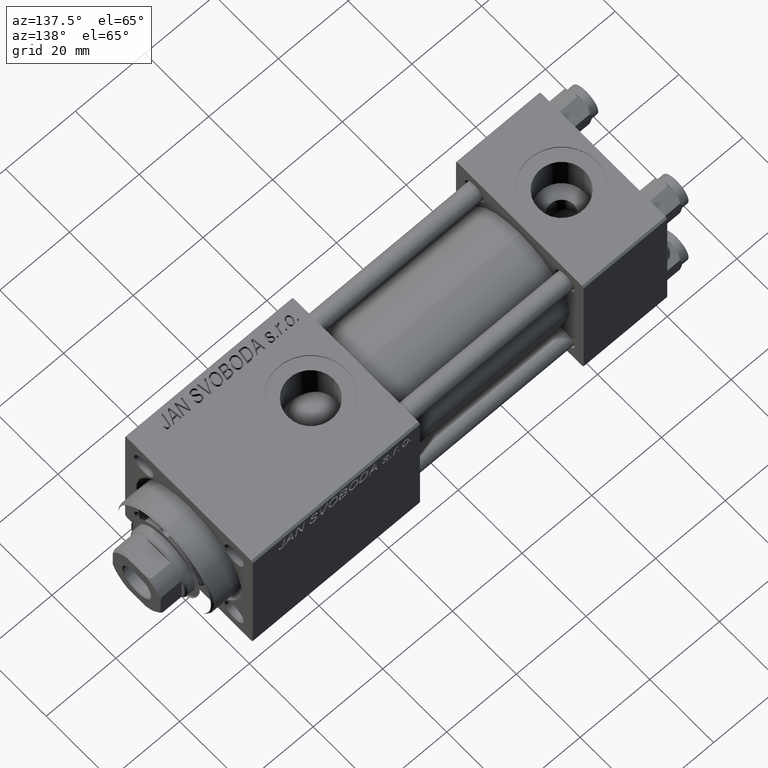
[diagram: clean part render]
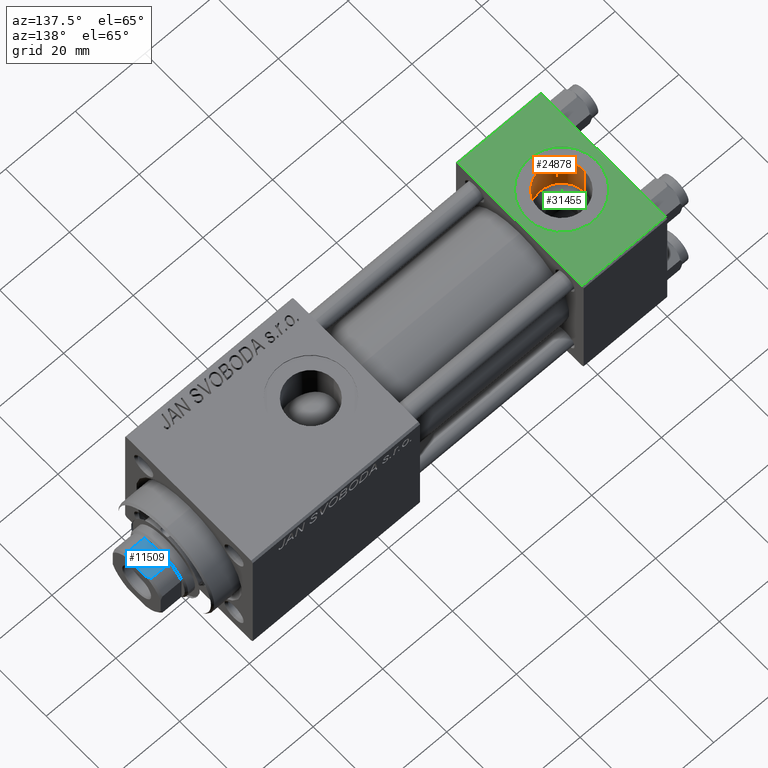
[diagram: same view with three faces highlighted in distinct colors, each labeled with its STEP entity id]
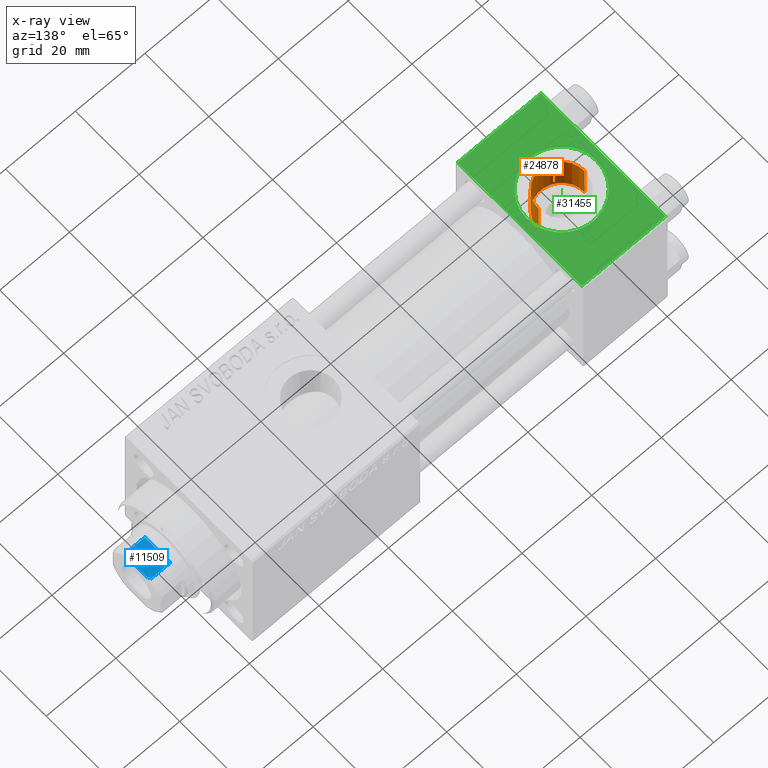
[diagram: x-ray of the same camera — body ghosted, the three highlighted faces saturated]
A machine part, auxiliary view with three faces highlighted in distinct colors.
The next image is the same camera in x-ray (body ghosted, the three faces saturated) — at least one of them is partly hidden behind the body in this view.
Their STEP definitions:

[orange] entity #24878 — the highlighted cylindrical surface (edge-blend (fillet) strip) has radius 6.58 mm, axis along (0, 0, 1).
#26 = ORIENTED_EDGE ( 'NONE', *, *, #13422, .F. ) ;
#3927 = EDGE_CURVE ( 'NONE', #46556, #18697, #48708, .T. ) ;
#3930 = CARTESIAN_POINT ( 'NONE',  ( 5.420000000000000817, 8.058175938389596335E-16, 9.165987261146492315 ) ) ;
#4290 = FACE_OUTER_BOUND ( 'NONE', #41430, .T. ) ;
#4659 = DIRECTION ( 'NONE',  ( 1.000000000000000000, 0.000000000000000000, 0.000000000000000000 ) ) ;
#7500 = EDGE_CURVE ( 'NONE', #18697, #41120, #42055, .T. ) ;
#10277 = ORIENTED_EDGE ( 'NONE', *, *, #3927, .T. ) ;
#13422 = EDGE_CURVE ( 'NONE', #46556, #34461, #15310, .T. ) ;
#15310 = LINE ( 'NONE', #47256, #46551 ) ;
#15676 = CARTESIAN_POINT ( 'NONE',  ( 12.00000000000000000, 1.540743955509788682E-30, 9.199999999999995737 ) ) ;
#15863 = AXIS2_PLACEMENT_3D ( 'NONE', #49038, #40868, #4659 ) ;
#18697 = VERTEX_POINT ( 'NONE', #3930 ) ;
#19011 = DIRECTION ( 'NONE',  ( -0.000000000000000000, -0.000000000000000000, 1.000000000000000000 ) ) ;
#19904 = DIRECTION ( 'NONE',  ( 1.000000000000000000, 0.000000000000000000, 0.000000000000000000 ) ) ;
#24878 = ADVANCED_FACE ( 'NONE', ( #4290 ), #36007, .F. ) ;
#25676 = DIRECTION ( 'NONE',  ( -0.000000000000000000, -0.000000000000000000, 1.000000000000000000 ) ) ;
#25925 = AXIS2_PLACEMENT_3D ( 'NONE', #45188, #29845, #36993 ) ;
#26920 = CARTESIAN_POINT ( 'NONE',  ( 5.420000000000000817, 8.058175938389596335E-16, 19.79999999999999716 ) ) ;
#27394 = AXIS2_PLACEMENT_3D ( 'NONE', #15676, #44468, #19904 ) ;
#29845 = DIRECTION ( 'NONE',  ( -0.000000000000000000, -0.000000000000000000, -1.000000000000000000 ) ) ;
#30205 = CIRCLE ( 'NONE', #15863, 6.579999999999999183 ) ;
#32259 = ORIENTED_EDGE ( 'NONE', *, *, #42880, .T. ) ;
#34461 = VERTEX_POINT ( 'NONE', #34873 ) ;
#34873 = CARTESIAN_POINT ( 'NONE',  ( 18.57999999999999829, 1.540743955509788682E-30, 19.79999999999999716 ) ) ;
#35001 = ORIENTED_EDGE ( 'NONE', *, *, #7500, .T. ) ;
#36007 = CYLINDRICAL_SURFACE ( 'NONE', #27394, 6.579999999999999183 ) ;
#36993 = DIRECTION ( 'NONE',  ( 1.000000000000000000, 0.000000000000000000, 0.000000000000000000 ) ) ;
#40868 = DIRECTION ( 'NONE',  ( 0.000000000000000000, 0.000000000000000000, 1.000000000000000000 ) ) ;
#41120 = VERTEX_POINT ( 'NONE', #26920 ) ;
#41430 = EDGE_LOOP ( 'NONE', ( #10277, #35001, #32259, #26 ) ) ;
#41539 = CARTESIAN_POINT ( 'NONE',  ( 5.420000000000000817, 8.058175938389596335E-16, 9.199999999999995737 ) ) ;
#42055 = LINE ( 'NONE', #41539, #43805 ) ;
#42880 = EDGE_CURVE ( 'NONE', #41120, #34461, #30205, .T. ) ;
#43805 = VECTOR ( 'NONE', #25676, 1000.000000000000000 ) ;
#44468 = DIRECTION ( 'NONE',  ( -0.000000000000000000, -0.000000000000000000, 1.000000000000000000 ) ) ;
#45188 = CARTESIAN_POINT ( 'NONE',  ( 12.00000000000000000, 1.540743955509788682E-30, 9.165987261146492315 ) ) ;
#46551 = VECTOR ( 'NONE', #19011, 1000.000000000000000 ) ;
#46556 = VERTEX_POINT ( 'NONE', #50552 ) ;
#47256 = CARTESIAN_POINT ( 'NONE',  ( 18.57999999999999829, 1.540743955509788682E-30, 9.199999999999995737 ) ) ;
#48708 = CIRCLE ( 'NONE', #25925, 6.579999999999999183 ) ;
#49038 = CARTESIAN_POINT ( 'NONE',  ( 12.00000000000000000, 1.540743955509788682E-30, 19.79999999999999716 ) ) ;
#50552 = CARTESIAN_POINT ( 'NONE',  ( 18.57999999999999829, 1.540743955509788682E-30, 9.165987261146492315 ) ) ;

[blue] entity #11509 — the highlighted planar face has unit normal (0, 0, -1).
#1039 = ORIENTED_EDGE ( 'NONE', *, *, #34109, .T. ) ;
#1474 = CARTESIAN_POINT ( 'NONE',  ( -3.602928590769680639, -7.500000000000000000, 109.6868571337553959 ) ) ;
#6264 = CARTESIAN_POINT ( 'NONE',  ( -4.000000000000001776, -7.500000000000000000, -0.001000000000001000089 ) ) ;
#7096 = DIRECTION ( 'NONE',  ( 0.000000000000000000, 1.000000000000000000, 0.000000000000000000 ) ) ;
#8297 = LINE ( 'NONE', #20715, #9592 ) ;
#8831 = CARTESIAN_POINT ( 'NONE',  ( -7.499999999999998224, -7.500000000000000000, 104.0000000000000000 ) ) ;
#9592 = VECTOR ( 'NONE', #40275, 1000.000000000000000 ) ;
#11509 = ADVANCED_FACE ( 'NONE', ( #35374 ), #22697, .F. ) ;
#11934 = CARTESIAN_POINT ( 'NONE',  ( -4.000000000000001776, -7.500000000000000000, 109.4999999999999147 ) ) ;
#12017 = VERTEX_POINT ( 'NONE', #51309 ) ;
#14006 = DIRECTION ( 'NONE',  ( 0.000000000000000000, -0.000000000000000000, 1.000000000000000000 ) ) ;
#14025 = VERTEX_POINT ( 'NONE', #11934 ) ;
#16117 = VERTEX_POINT ( 'NONE', #47307 ) ;
#17402 = CARTESIAN_POINT ( 'NONE',  ( -2.783882181414881973, -7.500000000000000000, 110.0000000000000000 ) ) ;
#17607 = CARTESIAN_POINT ( 'NONE',  ( -4.000000000000001776, -7.500000000000000000, 109.4999999999999147 ) ) ;
#19194 = CARTESIAN_POINT ( 'NONE',  ( 3.602928590769623352, -7.500000000000000000, 109.6868571337553675 ) ) ;
#20709 = VERTEX_POINT ( 'NONE', #17402 ) ;
#20715 = CARTESIAN_POINT ( 'NONE',  ( 4.000000000000001776, -7.500000000000000000, -0.001000000000001000089 ) ) ;
#21374 = EDGE_CURVE ( 'NONE', #38483, #22914, #8297, .T. ) ;
#22697 = PLANE ( 'NONE',  #36332 ) ;
#22914 = VERTEX_POINT ( 'NONE', #48944 ) ;
#22962 = CARTESIAN_POINT ( 'NONE',  ( -7.499999999999998224, -7.500000000000000000, 110.0000000000000000 ) ) ;
#23399 = CARTESIAN_POINT ( 'NONE',  ( 2.783882181414686574, -7.500000000000000000, 110.0000000000000000 ) ) ;
#24242 = B_SPLINE_CURVE_WITH_KNOTS ( 'NONE', 3,
 ( #35024, #19194, #40040, #23399 ),
 .UNSPECIFIED., .F., .F.,
 ( 4, 4 ),
 ( 9.540979117872439019E-18, 0.001314892599675281017 ),
 .UNSPECIFIED. ) ;
#24437 = LINE ( 'NONE', #8831, #29218 ) ;
#25703 = EDGE_CURVE ( 'NONE', #22914, #12017, #24242, .T. ) ;
#26608 = DIRECTION ( 'NONE',  ( -0.000000000000000000, -0.000000000000000000, 1.000000000000000000 ) ) ;
#26687 = EDGE_LOOP ( 'NONE', ( #41304, #51361, #26758, #1039, #39037, #45269 ) ) ;
#26758 = ORIENTED_EDGE ( 'NONE', *, *, #31756, .F. ) ;
#27343 = CARTESIAN_POINT ( 'NONE',  ( -7.499999999999998224, -7.500000000000000000, 110.0000000000000000 ) ) ;
#27796 = B_SPLINE_CURVE_WITH_KNOTS ( 'NONE', 3,
 ( #29465, #41628, #1474, #17607 ),
 .UNSPECIFIED., .F., .F.,
 ( 4, 4 ),
 ( 0.000000000000000000, 0.001314892599675087379 ),
 .UNSPECIFIED. ) ;
#28152 = EDGE_CURVE ( 'NONE', #16117, #38483, #24437, .T. ) ;
#29218 = VECTOR ( 'NONE', #41589, 1000.000000000000000 ) ;
#29465 = CARTESIAN_POINT ( 'NONE',  ( -2.783882181414881973, -7.500000000000000000, 110.0000000000000000 ) ) ;
#30178 = VECTOR ( 'NONE', #26608, 1000.000000000000000 ) ;
#31756 = EDGE_CURVE ( 'NONE', #20709, #12017, #50885, .T. ) ;
#34109 = EDGE_CURVE ( 'NONE', #20709, #14025, #27796, .T. ) ;
#34805 = LINE ( 'NONE', #6264, #30178 ) ;
#35024 = CARTESIAN_POINT ( 'NONE',  ( 4.000000000000001776, -7.500000000000000000, 109.4999999999998579 ) ) ;
#35374 = FACE_OUTER_BOUND ( 'NONE', #26687, .T. ) ;
#36332 = AXIS2_PLACEMENT_3D ( 'NONE', #22962, #7096, #14006 ) ;
#38483 = VERTEX_POINT ( 'NONE', #52182 ) ;
#39037 = ORIENTED_EDGE ( 'NONE', *, *, #41808, .F. ) ;
#40040 = CARTESIAN_POINT ( 'NONE',  ( 3.198463757182489431, -7.500000000000000000, 109.8557317173096379 ) ) ;
#40275 = DIRECTION ( 'NONE',  ( -0.000000000000000000, -0.000000000000000000, 1.000000000000000000 ) ) ;
#41304 = ORIENTED_EDGE ( 'NONE', *, *, #21374, .T. ) ;
#41589 = DIRECTION ( 'NONE',  ( 1.000000000000000000, 0.000000000000000000, 0.000000000000000000 ) ) ;
#41628 = CARTESIAN_POINT ( 'NONE',  ( -3.198463757182627099, -7.500000000000000000, 109.8557317173096521 ) ) ;
#41808 = EDGE_CURVE ( 'NONE', #16117, #14025, #34805, .T. ) ;
#45269 = ORIENTED_EDGE ( 'NONE', *, *, #28152, .T. ) ;
#46909 = DIRECTION ( 'NONE',  ( 1.000000000000000000, 0.000000000000000000, 0.000000000000000000 ) ) ;
#47307 = CARTESIAN_POINT ( 'NONE',  ( -4.000000000000001776, -7.500000000000000000, 103.9999999999999858 ) ) ;
#48944 = CARTESIAN_POINT ( 'NONE',  ( 4.000000000000001776, -7.500000000000000000, 109.4999999999998579 ) ) ;
#50885 = LINE ( 'NONE', #27343, #51048 ) ;
#51048 = VECTOR ( 'NONE', #46909, 1000.000000000000000 ) ;
#51309 = CARTESIAN_POINT ( 'NONE',  ( 2.783882181414686574, -7.500000000000000000, 110.0000000000000000 ) ) ;
#51361 = ORIENTED_EDGE ( 'NONE', *, *, #25703, .T. ) ;
#52182 = CARTESIAN_POINT ( 'NONE',  ( 4.000000000000001776, -7.500000000000000000, 103.9999999999999716 ) ) ;

[green] entity #31455 — the highlighted planar face has unit normal (0, 0, -1).
#352 = VECTOR ( 'NONE', #2422, 1000.000000000000000 ) ;
#531 = CARTESIAN_POINT ( 'NONE',  ( 24.00000000000000000, 20.00000000000000000, 20.00000000000000000 ) ) ;
#1083 = CARTESIAN_POINT ( 'NONE',  ( 0.000000000000000000, 19.50000000000000000, 20.00000000000000000 ) ) ;
#1696 = AXIS2_PLACEMENT_3D ( 'NONE', #36236, #20133, #44437 ) ;
#2422 = DIRECTION ( 'NONE',  ( -1.000000000000000000, 0.000000000000000000, 0.000000000000000000 ) ) ;
#3372 = CARTESIAN_POINT ( 'NONE',  ( 24.00000000000000000, 20.00000000000000000, 20.00000000000000000 ) ) ;
#3819 = AXIS2_PLACEMENT_3D ( 'NONE', #32795, #49408, #12978 ) ;
#4174 = VERTEX_POINT ( 'NONE', #50180 ) ;
#5503 = CIRCLE ( 'NONE', #3819, 9.999999999999998224 ) ;
#6383 = CARTESIAN_POINT ( 'NONE',  ( 0.000000000000000000, 19.50000000000000000, 20.00000000000000000 ) ) ;
#7067 = FACE_BOUND ( 'NONE', #28596, .T. ) ;
#7333 = FACE_OUTER_BOUND ( 'NONE', #38952, .T. ) ;
#11565 = DIRECTION ( 'NONE',  ( 0.000000000000000000, 2.602085213965210149E-16, -1.000000000000000000 ) ) ;
#12513 = CARTESIAN_POINT ( 'NONE',  ( 0.000000000000000000, 20.00000000000000000, 20.00000000000000000 ) ) ;
#12538 = ORIENTED_EDGE ( 'NONE', *, *, #48434, .F. ) ;
#12978 = DIRECTION ( 'NONE',  ( 1.000000000000000000, 0.000000000000000000, 0.000000000000000000 ) ) ;
#15065 = ORIENTED_EDGE ( 'NONE', *, *, #23128, .T. ) ;
#15898 = EDGE_CURVE ( 'NONE', #37394, #4174, #47933, .T. ) ;
#16409 = LINE ( 'NONE', #531, #41769 ) ;
#16689 = VERTEX_POINT ( 'NONE', #23142 ) ;
#16835 = VERTEX_POINT ( 'NONE', #21009 ) ;
#17245 = EDGE_CURVE ( 'NONE', #33408, #37394, #28346, .T. ) ;
#20133 = DIRECTION ( 'NONE',  ( 0.000000000000000000, 0.000000000000000000, 1.000000000000000000 ) ) ;
#21009 = CARTESIAN_POINT ( 'NONE',  ( 2.000000000000003553, 1.224646799147354440E-15, 19.99999999999999645 ) ) ;
#21720 = ORIENTED_EDGE ( 'NONE', *, *, #33429, .F. ) ;
#22587 = CARTESIAN_POINT ( 'NONE',  ( 24.00000000000000000, 19.50000000000000000, 20.00000000000000000 ) ) ;
#23128 = EDGE_CURVE ( 'NONE', #44042, #33408, #26460, .T. ) ;
#23142 = CARTESIAN_POINT ( 'NONE',  ( 22.00000000000000000, 1.540743955509788682E-30, 19.99999999999999645 ) ) ;
#25959 = ORIENTED_EDGE ( 'NONE', *, *, #15898, .T. ) ;
#26460 = LINE ( 'NONE', #6383, #352 ) ;
#27188 = VECTOR ( 'NONE', #31827, 1000.000000000000000 ) ;
#28346 = LINE ( 'NONE', #12513, #51632 ) ;
#28596 = EDGE_LOOP ( 'NONE', ( #12538, #21720 ) ) ;
#30736 = AXIS2_PLACEMENT_3D ( 'NONE', #3372, #11565, #51201 ) ;
#31455 = ADVANCED_FACE ( 'NONE', ( #7067, #7333 ), #46971, .F. ) ;
#31827 = DIRECTION ( 'NONE',  ( 1.000000000000000000, 0.000000000000000000, 0.000000000000000000 ) ) ;
#32520 = EDGE_CURVE ( 'NONE', #44042, #4174, #16409, .T. ) ;
#32795 = CARTESIAN_POINT ( 'NONE',  ( 12.00000000000000000, 1.540743955509788682E-30, 19.99999999999999645 ) ) ;
#33408 = VERTEX_POINT ( 'NONE', #1083 ) ;
#33429 = EDGE_CURVE ( 'NONE', #16835, #16689, #5503, .T. ) ;
#36236 = CARTESIAN_POINT ( 'NONE',  ( 12.00000000000000000, 1.540743955509788682E-30, 19.99999999999999645 ) ) ;
#37394 = VERTEX_POINT ( 'NONE', #49320 ) ;
#38952 = EDGE_LOOP ( 'NONE', ( #51838, #25959, #42671, #15065 ) ) ;
#40799 = CARTESIAN_POINT ( 'NONE',  ( 24.00000000000000000, -19.49999999999999289, 19.99999999999998934 ) ) ;
#41769 = VECTOR ( 'NONE', #44663, 1000.000000000000000 ) ;
#42671 = ORIENTED_EDGE ( 'NONE', *, *, #32520, .F. ) ;
#44042 = VERTEX_POINT ( 'NONE', #22587 ) ;
#44437 = DIRECTION ( 'NONE',  ( 1.000000000000000000, 0.000000000000000000, 0.000000000000000000 ) ) ;
#44485 = DIRECTION ( 'NONE',  ( 0.000000000000000000, -1.000000000000000000, -2.602085213965210149E-16 ) ) ;
#44663 = DIRECTION ( 'NONE',  ( 0.000000000000000000, -1.000000000000000000, -2.602085213965210149E-16 ) ) ;
#46971 = PLANE ( 'NONE',  #30736 ) ;
#47933 = LINE ( 'NONE', #40799, #27188 ) ;
#48434 = EDGE_CURVE ( 'NONE', #16689, #16835, #48947, .T. ) ;
#48947 = CIRCLE ( 'NONE', #1696, 9.999999999999998224 ) ;
#49320 = CARTESIAN_POINT ( 'NONE',  ( 0.000000000000000000, -19.49999999999999289, 19.99999999999998934 ) ) ;
#49408 = DIRECTION ( 'NONE',  ( 0.000000000000000000, 0.000000000000000000, 1.000000000000000000 ) ) ;
#50180 = CARTESIAN_POINT ( 'NONE',  ( 24.00000000000000000, -19.49999999999999289, 19.99999999999998934 ) ) ;
#51201 = DIRECTION ( 'NONE',  ( 0.000000000000000000, 1.000000000000000000, 2.602085213965210149E-16 ) ) ;
#51632 = VECTOR ( 'NONE', #44485, 1000.000000000000000 ) ;
#51838 = ORIENTED_EDGE ( 'NONE', *, *, #17245, .T. ) ;